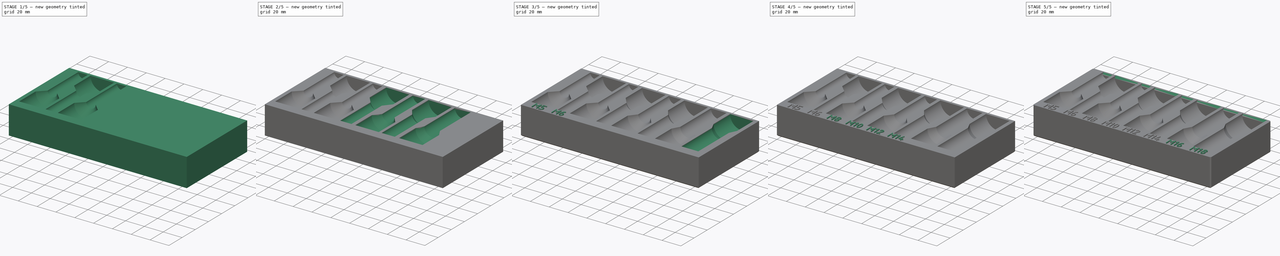
[diagram: build sequence overview — one tinted view per stage of 5, left to right]
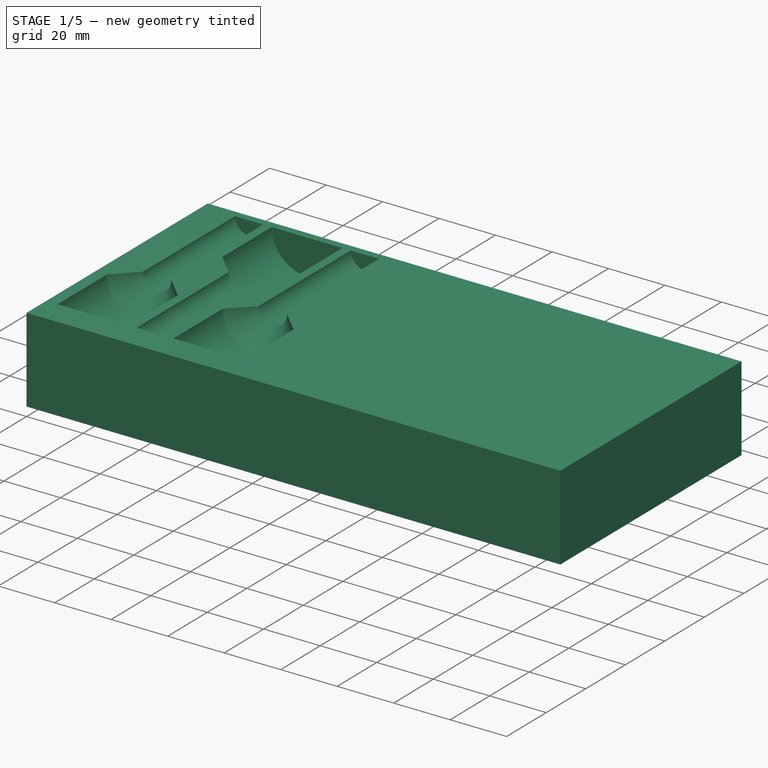
[diagram: stage 1 of 5 — iso view after this stage's code; geometry added in this stage tinted green]
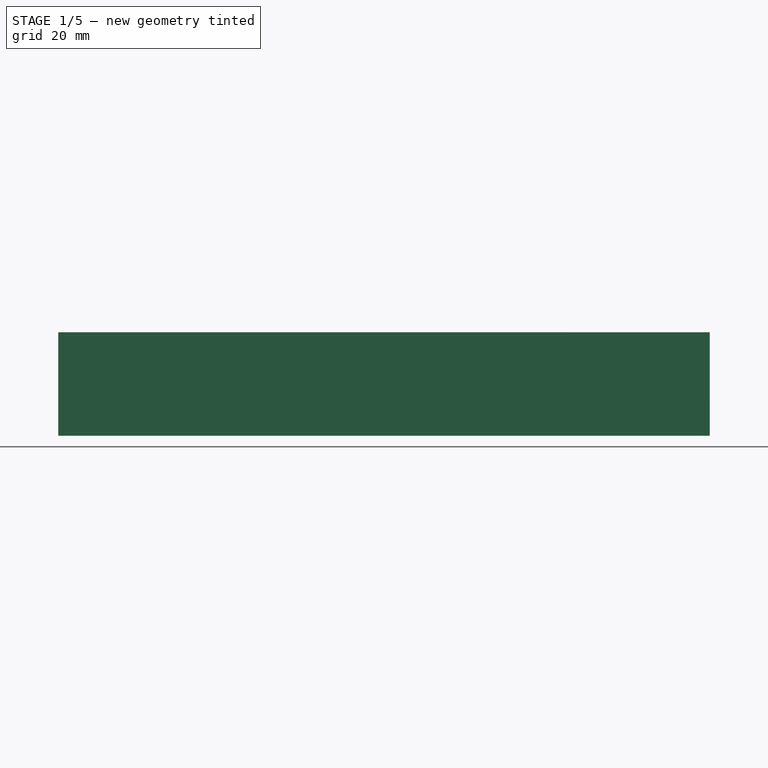
[diagram: stage 1 of 5 — front view after this stage's code; geometry added in this stage tinted green]
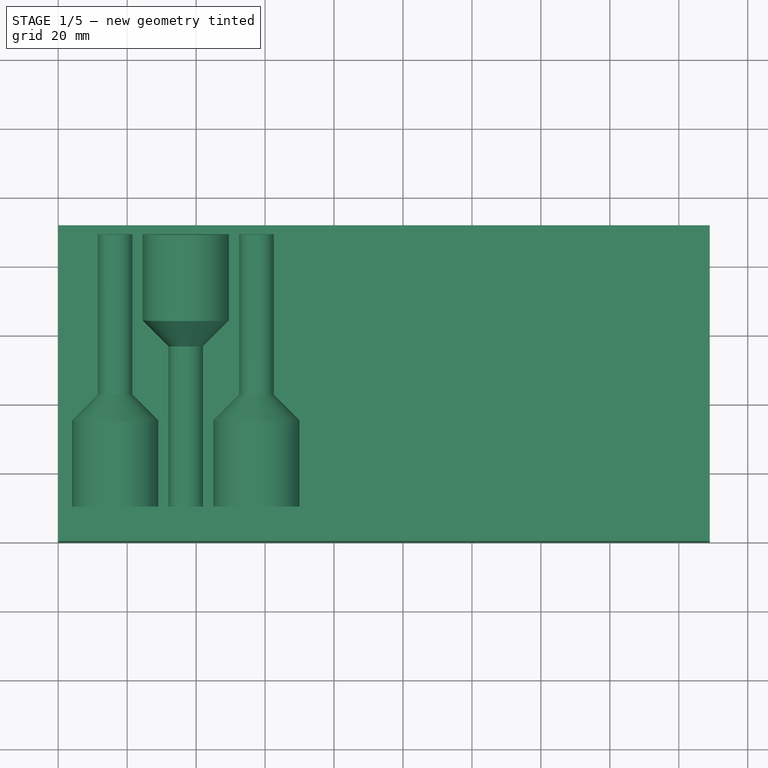
[diagram: stage 1 of 5 — top view after this stage's code; geometry added in this stage tinted green]
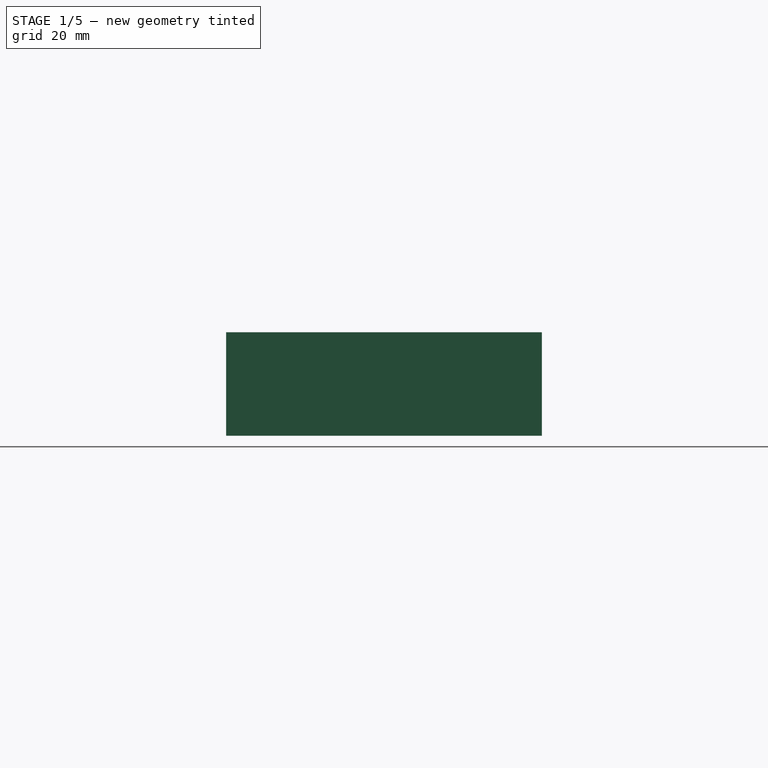
[diagram: stage 1 of 5 — right view after this stage's code; geometry added in this stage tinted green]
FCSTD DOCUMENT  (FreeCAD 1.1R44227 +568 (Git))
Label: Pajala_XZN_pwr_socket
License: All rights reserved
LicenseURL: https://en.wikipedia.org/wiki/All_rights_reserved
objects: Sketcher::SketchObject×9, PartDesign::Pad×9, PartDesign::Groove×8, Part::Part2DObjectPython×8, PartDesign::Chamfer×3, App::Point×1, PartDesign::Body×1
note: 87 computed .brp shape members not serialized (recipe doc carries the construction recipe); baked Part::Feature solids carry a one-line shape summary decoded from their .brp

FEATURE [App::Point] Origin001
  Role = Origin
FEATURE [Sketcher::SketchObject] Sketch
  ArcFitTolerance = 1e-06
  AttachmentSupport = -> [Origin]
  ExternalTypes = [0]
  FullyConstrained = true
  MakeInternals = false
  MapMode = 5
  _ExternalGeoVersion = 1
  sketch-geometry (4):
    g0: LineSegment StartX=0 StartY=0 StartZ=0 EndX=188.99 EndY=0 EndZ=0
    g1: LineSegment StartX=188.99 StartY=0 StartZ=0 EndX=188.99 EndY=91.6 EndZ=0
    g2: LineSegment StartX=188.99 StartY=91.6 StartZ=0 EndX=0 EndY=91.6 EndZ=0
    g3: LineSegment StartX=0 StartY=91.6 StartZ=0 EndX=0 EndY=0 EndZ=0
  constraints (11):
    c: Coincident(g0,g1)
    c: Coincident(g1,g2)
    c: Coincident(g2,g3)
    c: Coincident(g3,g0)
    c: Horizontal(g0)
    c: Horizontal(g2)
    c: Vertical(g1)
    c: Vertical(g3)
    c: Coincident(g0,g-1)
    c: DistanceX(g0,g0) = 188.99
    c: DistanceY(g1,g1) = 91.6
FEATURE [PartDesign::Pad] Pad
  Direction = (0,0,1)
  Length = 30
  Length2 = 10
  Profile = -> Sketch
  ReferenceAxis = -> Sketch [N_Axis]
  Refine = true
  SideType = 0
  Suppressed = false
  Type = 0
  Type2 = 0
FEATURE [Sketcher::SketchObject] Sketch001  label="M5"
  ArcFitTolerance = 1e-06
  AttachmentSupport = -> [Pad]
  ExternalTypes = [0]
  FullyConstrained = true
  MakeInternals = false
  MapMode = 5
  Placement = pos=(0,0,30) rot=(0,0,1;0rad)
  _ExternalGeoVersion = 1
  sketch-geometry (6):
    g0: LineSegment StartX=4 StartY=35 StartZ=0 EndX=4 EndY=10 EndZ=0
    g1: LineSegment StartX=11.5 StartY=42.5 StartZ=0 EndX=11.5 EndY=89 EndZ=0
    g2: LineSegment StartX=4 StartY=35 StartZ=0 EndX=11.5 EndY=42.5 EndZ=0
    g3: LineSegment StartX=4 StartY=10 StartZ=0 EndX=16.5 EndY=10 EndZ=0
    g4: LineSegment StartX=16.5 StartY=10 StartZ=0 EndX=16.5 EndY=89 EndZ=0
    g5: LineSegment StartX=16.5 StartY=89 StartZ=0 EndX=11.5 EndY=89 EndZ=0
  constraints (18):
    c: Vertical(g0)
    c: Vertical(g1)
    c: Coincident(g2,g0)
    c: Coincident(g2,g1)
    c: DistanceX(g-1,g0) = 4
    c: DistanceY(g-1,g0) = 10
    c: DistanceY(g0,g1) = 79
    c: Coincident(g3,g0)
    c: Horizontal(g3)
    c: Coincident(g4,g3)
    c: Vertical(g4)
    c: Coincident(g5,g4)
    c: Coincident(g5,g1)
    c: Horizontal(g5)
    c: DistanceX(g3,g3) = 12.5
    c: DistanceX(g5,g5) = 5
    c: DistanceY(g0,g0) = 25
    c: DistanceY(g0,g1) = 7.5
FEATURE [PartDesign::Groove] Groove
  Angle = 360
  Angle2 = 0
  Axis = (0,1,0)
  Base = (16.5,10,30)
  BaseFeature = -> Pad
  Profile = -> Sketch001
  ReferenceAxis = -> Sketch001 [Edge4]
  Refine = true
  Suppressed = false
  Type = 0
FEATURE [Sketcher::SketchObject] Sketch002  label="M6"
  ArcFitTolerance = 1e-06
  AttachmentSupport = -> [Groove]
  ExternalTypes = [0]
  FullyConstrained = true
  MakeInternals = false
  MapMode = 5
  Placement = pos=(0,0,30) rot=(0,0,1;0rad)
  _ExternalGeoVersion = 1
  sketch-geometry (6):
    g0: LineSegment StartX=24.5 StartY=89 StartZ=0 EndX=37 EndY=89 EndZ=0
    g1: LineSegment StartX=24.5 StartY=89 StartZ=0 EndX=24.5 EndY=64 EndZ=0
    g2: LineSegment StartX=24.5 StartY=64 StartZ=0 EndX=32 EndY=56.5 EndZ=0
    g3: LineSegment StartX=32 StartY=56.5 StartZ=0 EndX=32 EndY=10 EndZ=0
    g4: LineSegment StartX=32 StartY=10 StartZ=0 EndX=37 EndY=10 EndZ=0
    g5: LineSegment StartX=37 StartY=10 StartZ=0 EndX=37 EndY=89 EndZ=0
  constraints (18):
    c: Horizontal(g0)
    c: Coincident(g1,g0)
    c: Vertical(g1)
    c: Coincident(g2,g1)
    c: Coincident(g3,g2)
    c: Vertical(g3)
    c: Coincident(g4,g3)
    c: Horizontal(g4)
    c: Coincident(g5,g4)
    c: Coincident(g5,g0)
    c: Vertical(g5)
    c: DistanceY(g1,g1) = 25
    c: DistanceX(g0,g0) = 12.5
    c: DistanceX(g4,g4) = 5
    c: DistanceY(g2,g1) = 7.5
    c: DistanceY(g5,g5) = 79
    c: DistanceY(g-1,g3) = 10
    c: DistanceX(g-1,g3) = 32
FEATURE [PartDesign::Groove] Groove001
  Angle = 360
  Angle2 = 0
  Axis = (0,1,0)
  Base = (37,10,30)
  BaseFeature = -> Groove
  Profile = -> Sketch002
  ReferenceAxis = -> Sketch002 [Edge2]
  Refine = true
  Suppressed = false
  Type = 0
FEATURE [Sketcher::SketchObject] Sketch003
  ArcFitTolerance = 1e-06
  AttachmentSupport = -> [Groove001]
  ExternalTypes = [0]
  FullyConstrained = true
  MakeInternals = false
  MapMode = 5
  Placement = pos=(0,0,30) rot=(0,0,1;0rad)
  _ExternalGeoVersion = 1
  sketch-geometry (6):
    g0: LineSegment StartX=45 StartY=10 StartZ=0 EndX=45 EndY=35 EndZ=0
    g1: LineSegment StartX=45 StartY=35 StartZ=0 EndX=52.5 EndY=42.5 EndZ=0
    g2: LineSegment StartX=52.5 StartY=42.5 StartZ=0 EndX=52.5 EndY=89 EndZ=0
    g3: LineSegment StartX=52.5 StartY=89 StartZ=0 EndX=57.5 EndY=89 EndZ=0
    g4: LineSegment StartX=57.5 StartY=89 StartZ=0 EndX=57.5 EndY=10 EndZ=0
    g5: LineSegment StartX=57.5 StartY=10 StartZ=0 EndX=45 EndY=10 EndZ=0
  constraints (18):
    c: Vertical(g0)
    c: Coincident(g1,g0)
    c: Coincident(g2,g1)
    c: Vertical(g2)
    c: Coincident(g3,g2)
    c: Horizontal(g3)
    c: Coincident(g4,g3)
    c: Vertical(g4)
    c: Coincident(g5,g4)
    c: Coincident(g5,g0)
    c: Horizontal(g5)
    c: DistanceY(g0,g0) = 25
    c: DistanceY(g-1,g0) = 10
    c: DistanceX(g5,g5) = 12.5
    c: DistanceY(g0,g1) = 7.5
    c: DistanceX(g3,g3) = 5
    c: DistanceY(g4,g4) = 79
    c: DistanceX(g-1,g0) = 45
FEATURE [PartDesign::Groove] Groove002
  Angle = 360
  Angle2 = 0
  Axis = (0,-1,0)
  Base = (57.5,89,30)
  BaseFeature = -> Groove001
  Profile = -> Sketch003
  ReferenceAxis = -> Sketch003 [Edge5]
  Refine = true
  Suppressed = false
  Type = 0
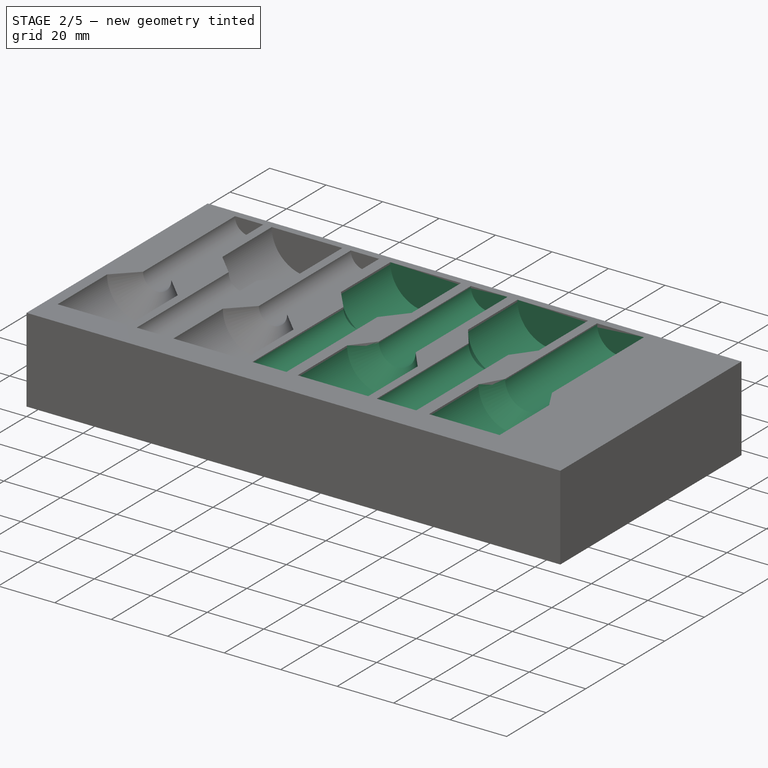
[diagram: stage 2 of 5 — iso view after this stage's code; geometry added in this stage tinted green]
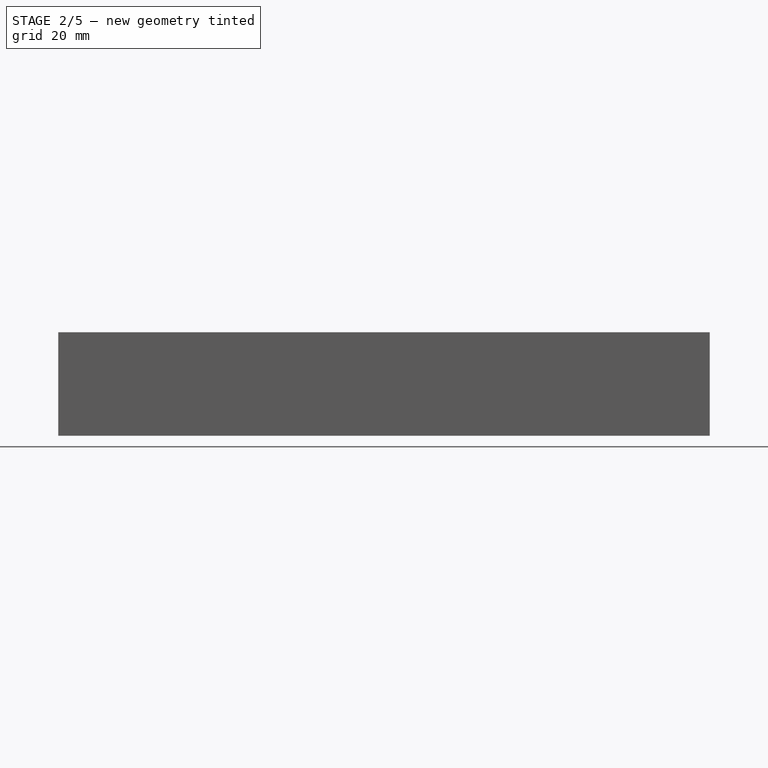
[diagram: stage 2 of 5 — front view after this stage's code; geometry added in this stage tinted green]
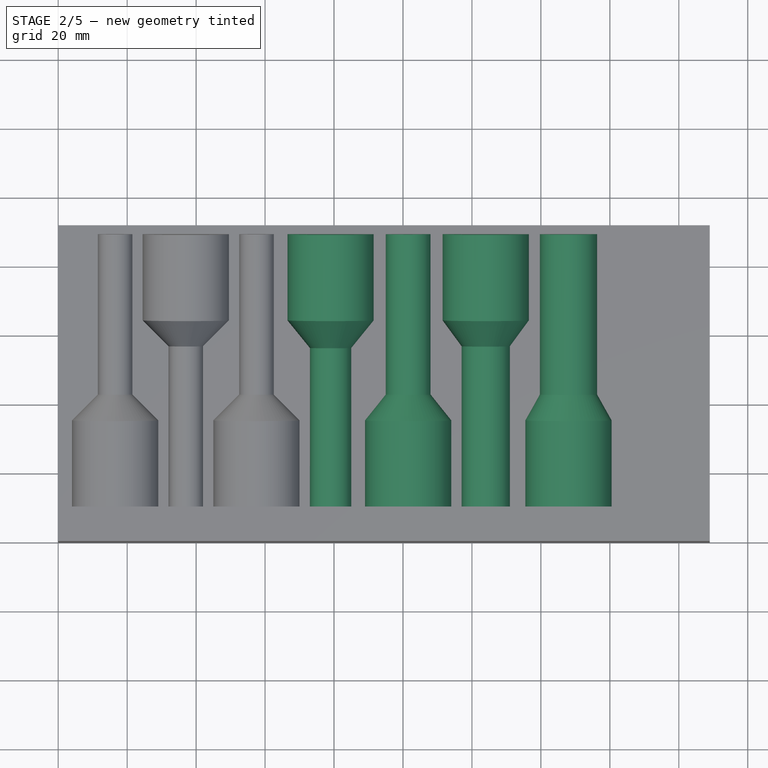
[diagram: stage 2 of 5 — top view after this stage's code; geometry added in this stage tinted green]
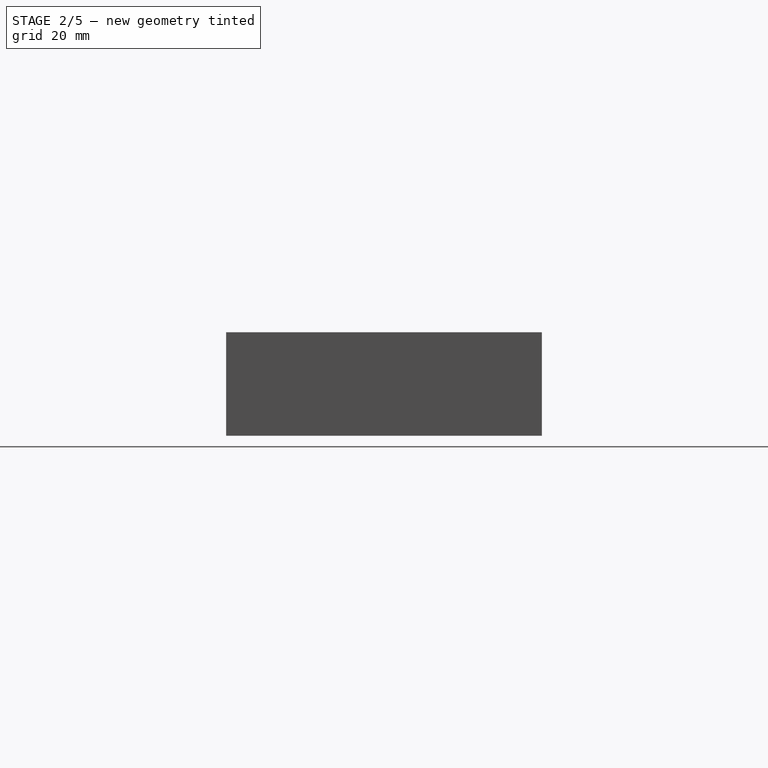
[diagram: stage 2 of 5 — right view after this stage's code; geometry added in this stage tinted green]
FEATURE [Sketcher::SketchObject] Sketch004  label="M10"
  ArcFitTolerance = 1e-06
  AttachmentSupport = -> [Groove002]
  ExternalTypes = [0]
  FullyConstrained = true
  MakeInternals = false
  MapMode = 5
  Placement = pos=(0,0,30) rot=(0,0,1;0rad)
  _ExternalGeoVersion = 1
  sketch-geometry (6):
    g0: LineSegment StartX=66.5 StartY=89 StartZ=0 EndX=66.5 EndY=64 EndZ=0
    g1: LineSegment StartX=66.5 StartY=64 StartZ=0 EndX=73 EndY=56 EndZ=0
    g2: LineSegment StartX=73 StartY=56 StartZ=0 EndX=73 EndY=10 EndZ=0
    g3: LineSegment StartX=73 StartY=10 StartZ=0 EndX=79 EndY=10 EndZ=0
    g4: LineSegment StartX=79 StartY=10 StartZ=0 EndX=79 EndY=89 EndZ=0
    g5: LineSegment StartX=79 StartY=89 StartZ=0 EndX=66.5 EndY=89 EndZ=0
  constraints (18):
    c: Vertical(g0)
    c: Coincident(g1,g0)
    c: Coincident(g2,g1)
    c: Vertical(g2)
    c: Coincident(g3,g2)
    c: Horizontal(g3)
    c: Coincident(g4,g3)
    c: Vertical(g4)
    c: Coincident(g5,g4)
    c: Coincident(g5,g0)
    c: Horizontal(g5)
    c: DistanceY(g-1,g2) = 10
    c: DistanceY(g4,g4) = 79
    c: DistanceX(g5,g5) = 12.5
    c: DistanceY(g0,g0) = 25
    c: DistanceY(g1,g0) = 8
    c: DistanceX(g3,g3) = 6
    c: DistanceX(g-1,g2) = 73
FEATURE [PartDesign::Groove] Groove003
  Angle = 360
  Angle2 = 0
  Axis = (0,1,0)
  Base = (79,10,30)
  BaseFeature = -> Groove002
  Profile = -> Sketch004
  ReferenceAxis = -> Sketch004 [Edge5]
  Refine = true
  Suppressed = false
  Type = 0
FEATURE [Sketcher::SketchObject] Sketch005  label="M12"
  ArcFitTolerance = 1e-06
  AttachmentSupport = -> [Groove003]
  ExternalTypes = [0]
  FullyConstrained = true
  MakeInternals = false
  MapMode = 5
  Placement = pos=(0,0,30) rot=(0,0,1;0rad)
  _ExternalGeoVersion = 1
  sketch-geometry (6):
    g0: LineSegment StartX=89 StartY=10 StartZ=0 EndX=89 EndY=35 EndZ=0
    g1: LineSegment StartX=89 StartY=35 StartZ=0 EndX=95 EndY=42.5 EndZ=0
    g2: LineSegment StartX=95 StartY=42.5 StartZ=0 EndX=95 EndY=89 EndZ=0
    g3: LineSegment StartX=95 StartY=89 StartZ=0 EndX=101.5 EndY=89 EndZ=0
    g4: LineSegment StartX=101.5 StartY=89 StartZ=0 EndX=101.5 EndY=10 EndZ=0
    g5: LineSegment StartX=101.5 StartY=10 StartZ=0 EndX=89 EndY=10 EndZ=0
  constraints (18):
    c: Vertical(g0)
    c: Coincident(g1,g0)
    c: Coincident(g2,g1)
    c: Vertical(g2)
    c: Coincident(g3,g2)
    c: Horizontal(g3)
    c: Coincident(g4,g3)
    c: Vertical(g4)
    c: Coincident(g5,g4)
    c: Coincident(g5,g0)
    c: Horizontal(g5)
    c: DistanceX(g5,g5) = 12.5
    c: DistanceY(g-1,g0) = 10
    c: DistanceY(g0,g0) = 25
    c: DistanceY(g4,g4) = 79
    c: DistanceX(g3,g3) = 6.5
    c: DistanceY(g0,g1) = 7.5
    c: DistanceX(g-1,g0) = 89
FEATURE [PartDesign::Groove] Groove004
  Angle = 360
  Angle2 = 0
  Axis = (0,-1,0)
  Base = (101.5,89,30)
  BaseFeature = -> Groove003
  Profile = -> Sketch005
  ReferenceAxis = -> Sketch005 [Edge5]
  Refine = true
  Suppressed = false
  Type = 0
FEATURE [Sketcher::SketchObject] Sketch006  label="M14"
  ArcFitTolerance = 1e-06
  AttachmentSupport = -> [Groove004]
  ExternalTypes = [0]
  FullyConstrained = true
  MakeInternals = false
  MapMode = 5
  Placement = pos=(0,0,30) rot=(0,0,1;0rad)
  _ExternalGeoVersion = 1
  sketch-geometry (6):
    g0: LineSegment StartX=111.5 StartY=89 StartZ=0 EndX=111.5 EndY=64 EndZ=0
    g1: LineSegment StartX=111.5 StartY=64 StartZ=0 EndX=117 EndY=56.5 EndZ=0
    g2: LineSegment StartX=117 StartY=56.5 StartZ=0 EndX=117 EndY=10 EndZ=0
    g3: LineSegment StartX=117 StartY=10 StartZ=0 EndX=124 EndY=10 EndZ=0
    g4: LineSegment StartX=124 StartY=10 StartZ=0 EndX=124 EndY=89 EndZ=0
    g5: LineSegment StartX=124 StartY=89 StartZ=0 EndX=111.5 EndY=89 EndZ=0
  constraints (18):
    c: Vertical(g0)
    c: Coincident(g1,g0)
    c: Coincident(g2,g1)
    c: Vertical(g2)
    c: Coincident(g3,g2)
    c: Horizontal(g3)
    c: Coincident(g4,g3)
    c: Vertical(g4)
    c: Coincident(g5,g4)
    c: Coincident(g5,g0)
    c: Horizontal(g5)
    c: DistanceX(g5,g5) = 12.5
    c: DistanceY(g4,g4) = 79
    c: DistanceY(g0,g0) = 25
    c: DistanceY(g1,g0) = 7.5
    c: DistanceX(g3,g3) = 7
    c: DistanceY(g-1,g2) = 10
    c: DistanceX(g-1,g2) = 117
FEATURE [PartDesign::Groove] Groove005
  Angle = 360
  Angle2 = 0
  Axis = (0,1,0)
  Base = (124,10,30)
  BaseFeature = -> Groove004
  Profile = -> Sketch006
  ReferenceAxis = -> Sketch006 [Edge5]
  Refine = true
  Suppressed = false
  Type = 0
FEATURE [Sketcher::SketchObject] Sketch007
  ArcFitTolerance = 1e-06
  AttachmentSupport = -> [Groove005]
  ExternalTypes = [0]
  FullyConstrained = true
  MakeInternals = false
  MapMode = 5
  Placement = pos=(0,0,30) rot=(0,0,1;0rad)
  _ExternalGeoVersion = 1
  sketch-geometry (6):
    g0: LineSegment StartX=135.5 StartY=10 StartZ=0 EndX=135.5 EndY=35 EndZ=0
    g1: LineSegment StartX=135.5 StartY=35 StartZ=0 EndX=139.7 EndY=42.5 EndZ=0
    g2: LineSegment StartX=139.7 StartY=42.5 StartZ=0 EndX=139.7 EndY=89 EndZ=0
    g3: LineSegment StartX=139.7 StartY=89 StartZ=0 EndX=148 EndY=89 EndZ=0
    g4: LineSegment StartX=148 StartY=89 StartZ=0 EndX=148 EndY=10 EndZ=0
    g5: LineSegment StartX=148 StartY=10 StartZ=0 EndX=135.5 EndY=10 EndZ=0
  constraints (18):
    c: Vertical(g0)
    c: Coincident(g0,g1)
    c: Coincident(g1,g2)
    c: Vertical(g2)
    c: Coincident(g2,g3)
    c: Horizontal(g3)
    c: Coincident(g3,g4)
    c: Vertical(g4)
    c: Coincident(g4,g5)
    c: Coincident(g5,g0)
    c: Horizontal(g5)
    c: DistanceX(g5,g5) = 12.5
    c: DistanceY(g0,g0) = 25
    c: DistanceY(g0,g1) = 7.5
    c: DistanceY(g4,g4) = 79
    c: DistanceY(g-1,g4) = 10
    c: DistanceX(g3,g3) = 8.3
    c: DistanceX(g-1,g0) = 135.5
FEATURE [PartDesign::Groove] Groove006
  Angle = 360
  Angle2 = 0
  Axis = (0,-1,0)
  Base = (148,89,30)
  BaseFeature = -> Groove005
  Profile = -> Sketch007
  ReferenceAxis = -> Sketch007 [Edge5]
  Refine = true
  Suppressed = false
  Type = 0
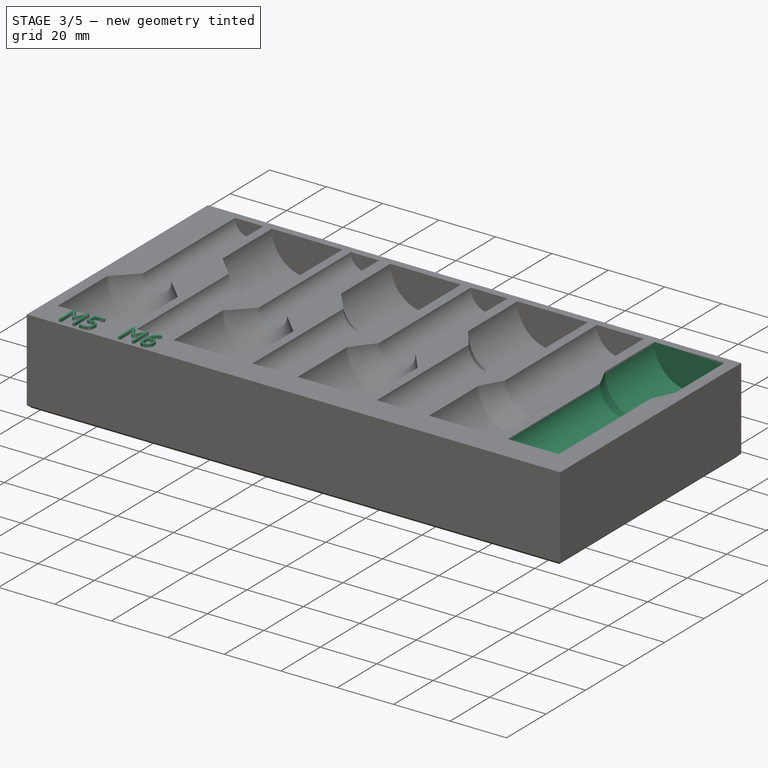
[diagram: stage 3 of 5 — iso view after this stage's code; geometry added in this stage tinted green]
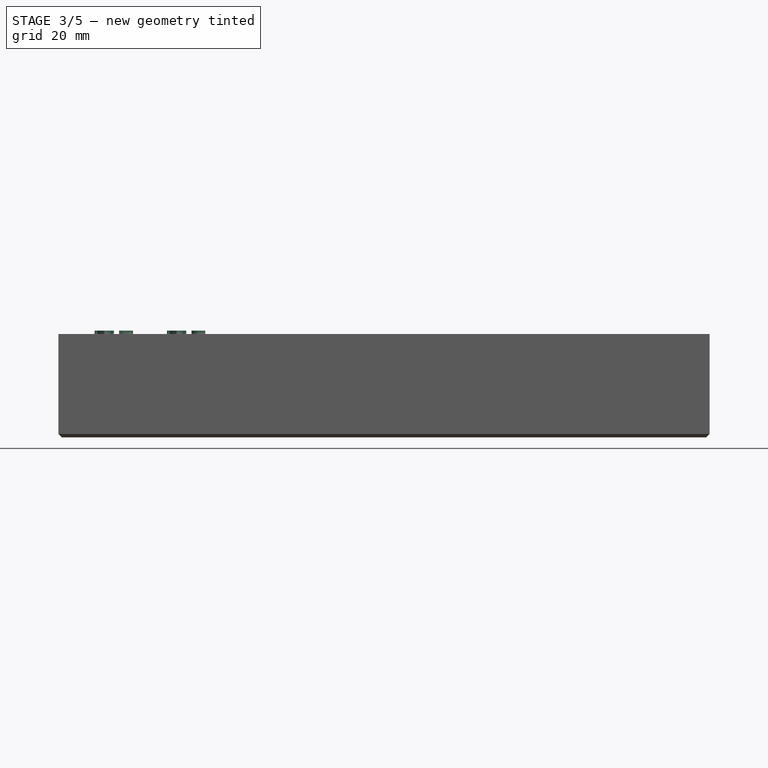
[diagram: stage 3 of 5 — front view after this stage's code; geometry added in this stage tinted green]
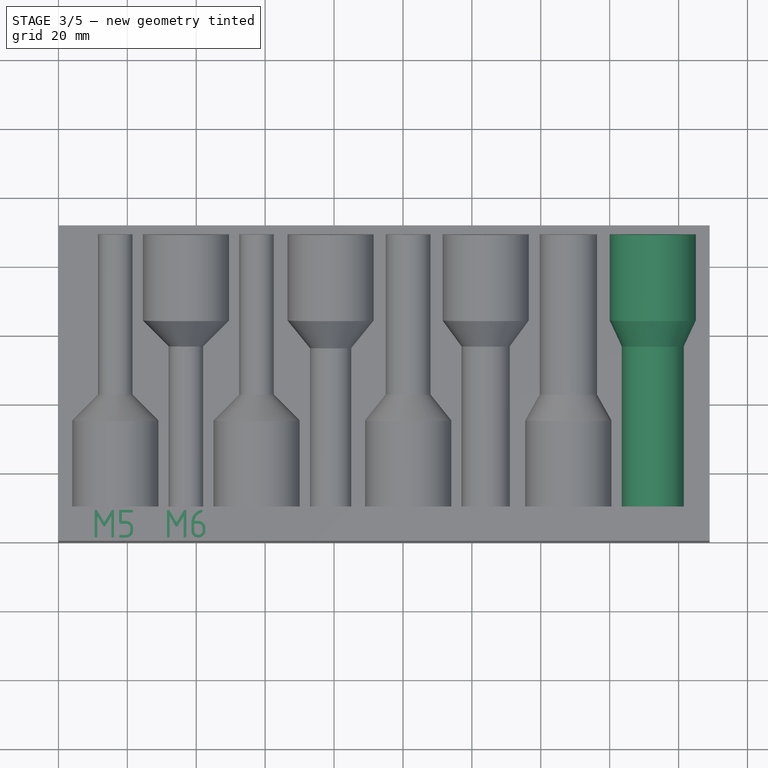
[diagram: stage 3 of 5 — top view after this stage's code; geometry added in this stage tinted green]
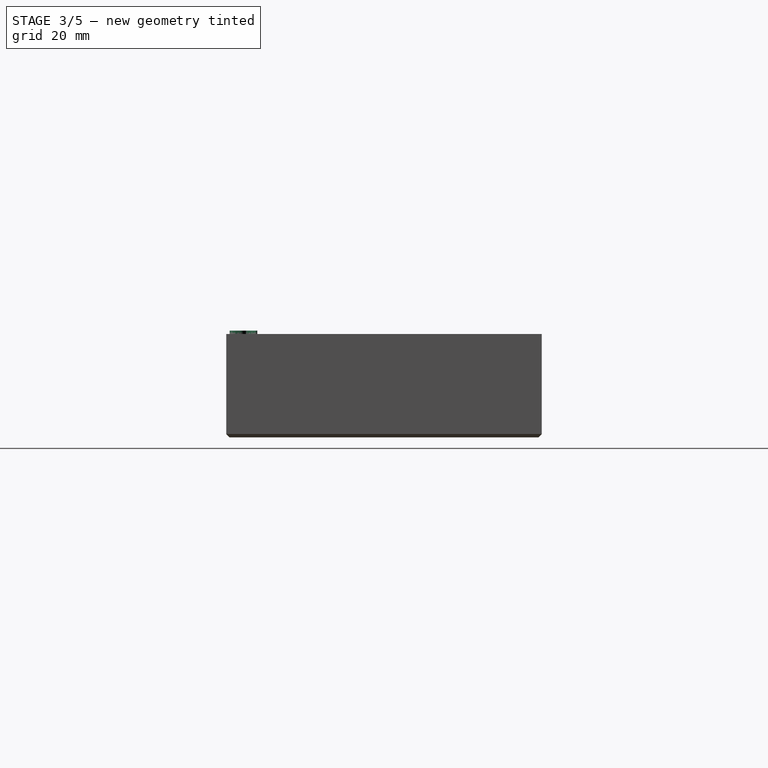
[diagram: stage 3 of 5 — right view after this stage's code; geometry added in this stage tinted green]
FEATURE [Sketcher::SketchObject] Sketch008
  ArcFitTolerance = 1e-06
  AttachmentSupport = -> [Groove006]
  ExternalTypes = [0]
  FullyConstrained = true
  MakeInternals = false
  MapMode = 5
  Placement = pos=(0,0,30) rot=(0,0,1;0rad)
  _ExternalGeoVersion = 1
  sketch-geometry (6):
    g0: LineSegment StartX=160 StartY=89 StartZ=0 EndX=160 EndY=64 EndZ=0
    g1: LineSegment StartX=160 StartY=64 StartZ=0 EndX=163.5 EndY=56.5 EndZ=0
    g2: LineSegment StartX=163.5 StartY=56.5 StartZ=0 EndX=163.5 EndY=10 EndZ=0
    g3: LineSegment StartX=163.5 StartY=10 StartZ=0 EndX=172.5 EndY=10 EndZ=0
    g4: LineSegment StartX=172.5 StartY=10 StartZ=0 EndX=172.5 EndY=89 EndZ=0
    g5: LineSegment StartX=172.5 StartY=89 StartZ=0 EndX=160 EndY=89 EndZ=0
  constraints (18):
    c: Vertical(g0)
    c: Coincident(g0,g1)
    c: Coincident(g1,g2)
    c: Vertical(g2)
    c: Coincident(g2,g3)
    c: Horizontal(g3)
    c: Coincident(g3,g4)
    c: Vertical(g4)
    c: Coincident(g4,g5)
    c: Horizontal(g5)
    c: Coincident(g5,g0)
    c: DistanceX(g5,g5) = 12.5
    c: DistanceY(g4,g4) = 79
    c: DistanceY(g0,g0) = 25
    c: DistanceY(g1,g1) = 7.5
    c: DistanceY(g-1,g3) = 10
    c: DistanceX(g3,g3) = 9
    c: DistanceX(g-1,g2) = 163.5
FEATURE [PartDesign::Groove] Groove007
  Angle = 360
  Angle2 = 0
  Axis = (0,1,0)
  Base = (172.5,10,30)
  BaseFeature = -> Groove006
  Profile = -> Sketch008
  ReferenceAxis = -> Sketch008 [Edge5]
  Refine = true
  Suppressed = false
  Type = 0
FEATURE [PartDesign::Chamfer] Chamfer
  Angle = 45
  Base = -> Groove007 [Face4]
  BaseFeature = -> Groove007
  ChamferType = 0
  FlipDirection = false
  Refine = true
  Size = 1
  Size2 = 1
  SupportTransform = false
  Suppressed = false
  UseAllEdges = false
FEATURE [Part::Part2DObjectPython] ShapeString  # Draft 2D object (typed FeaturePython)
  AttachmentOffset = pos=(10.5,1,0) rot=(0,0,1;0rad)
  AttachmentSupport = -> [Chamfer]
  FontFile = <path>
  Fuse = false
  Justification = 6
  JustificationReference = 0
  KeepLeftMargin = false
  MakeFace = true
  MapMode = 5
  ObliqueAngle = 0
  Placement = pos=(10.5,1,30) rot=(0,0,1;0rad)
  ScaleToSize = true
  Size = 8
  String = M5
  Tracking = 0
FEATURE [PartDesign::Pad] Pad001
  BaseFeature = -> Chamfer
  Direction = (0,0,1)
  Length = 1
  Length2 = 10
  Profile = -> ShapeString
  ReferenceAxis = -> ShapeString [N_Axis]
  Refine = true
  SideType = 0
  Suppressed = false
  Type = 0
  Type2 = 0
FEATURE [Part::Part2DObjectPython] ShapeString001  # Draft 2D object (typed FeaturePython)
  AttachmentOffset = pos=(31.5,1,0) rot=(0,0,1;0rad)
  AttachmentSupport = -> [Pad001]
  FontFile = <path>
  Fuse = false
  Justification = 6
  JustificationReference = 0
  KeepLeftMargin = false
  MakeFace = true
  MapMode = 5
  ObliqueAngle = 0
  Placement = pos=(31.5,1,30) rot=(0,0,1;0rad)
  ScaleToSize = true
  Size = 8
  String = M6
  Tracking = 0
FEATURE [PartDesign::Pad] Pad002
  BaseFeature = -> Pad001
  Direction = (0,0,1)
  Length = 1
  Length2 = 10
  Profile = -> ShapeString001
  ReferenceAxis = -> ShapeString001 [N_Axis]
  Refine = true
  SideType = 0
  Suppressed = false
  Type = 0
  Type2 = 0
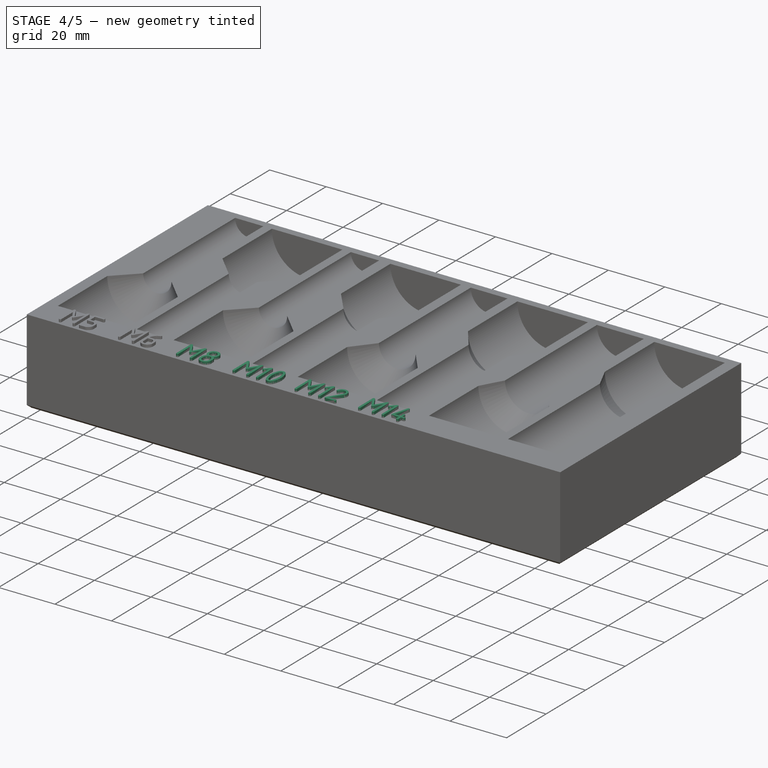
[diagram: stage 4 of 5 — iso view after this stage's code; geometry added in this stage tinted green]
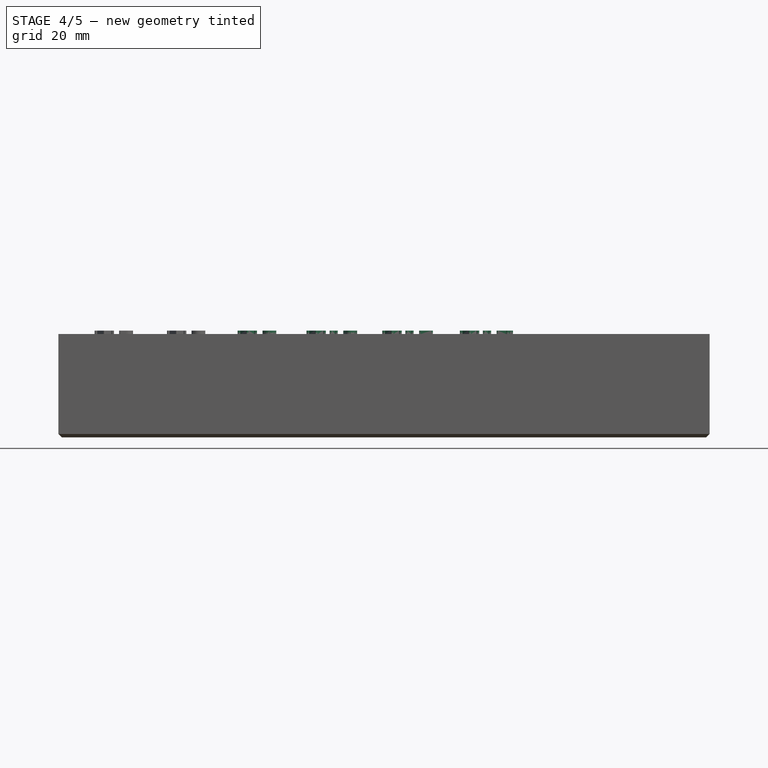
[diagram: stage 4 of 5 — front view after this stage's code; geometry added in this stage tinted green]
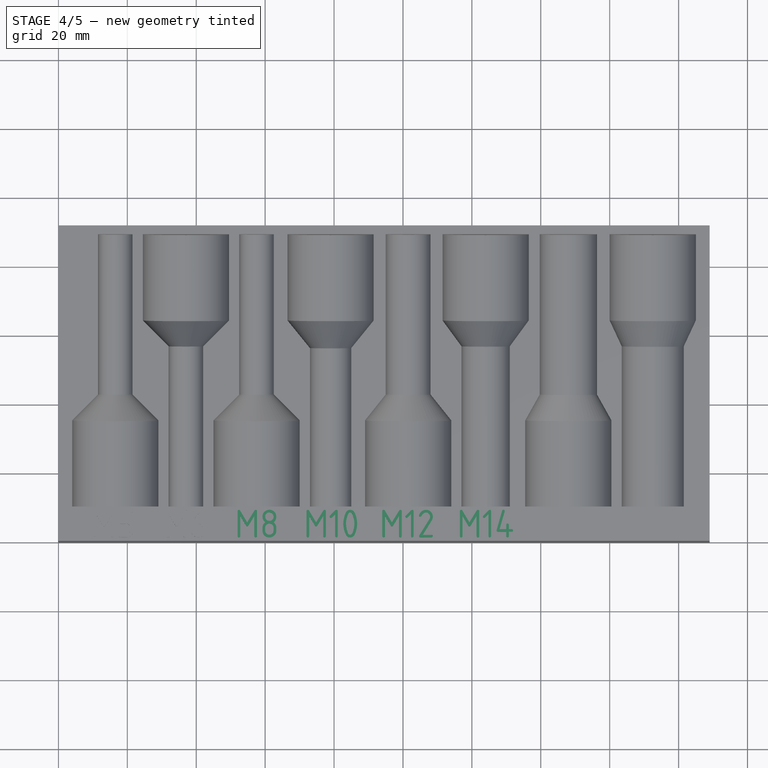
[diagram: stage 4 of 5 — top view after this stage's code; geometry added in this stage tinted green]
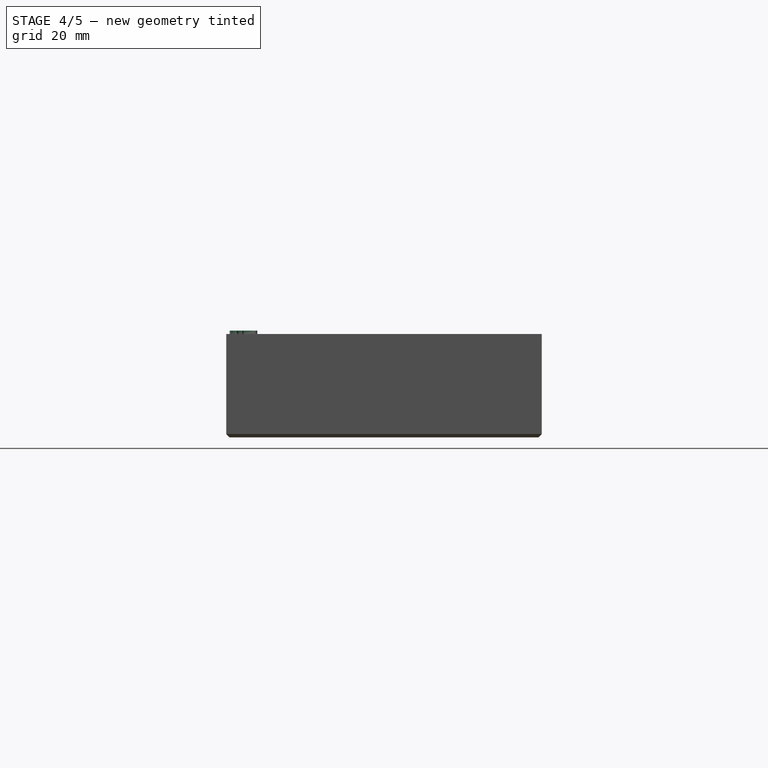
[diagram: stage 4 of 5 — right view after this stage's code; geometry added in this stage tinted green]
FEATURE [Part::Part2DObjectPython] ShapeString002  # Draft 2D object (typed FeaturePython)
  AttachmentOffset = pos=(52,1,0) rot=(0,0,1;0rad)
  AttachmentSupport = -> [Pad002]
  FontFile = <path>
  Fuse = false
  Justification = 6
  JustificationReference = 0
  KeepLeftMargin = false
  MakeFace = true
  MapMode = 5
  ObliqueAngle = 0
  Placement = pos=(52,1,30) rot=(0,0,1;0rad)
  ScaleToSize = true
  Size = 8
  String = M8
  Tracking = 0
FEATURE [PartDesign::Pad] Pad003
  BaseFeature = -> Pad002
  Direction = (0,0,1)
  Length = 1
  Length2 = 10
  Profile = -> ShapeString002
  ReferenceAxis = -> ShapeString002 [N_Axis]
  Refine = true
  SideType = 0
  Suppressed = false
  Type = 0
  Type2 = 0
FEATURE [Part::Part2DObjectPython] ShapeString003  # Draft 2D object (typed FeaturePython)
  AttachmentOffset = pos=(72,1,0) rot=(0,0,1;0rad)
  AttachmentSupport = -> [Pad003]
  FontFile = <path>
  Fuse = false
  Justification = 6
  JustificationReference = 0
  KeepLeftMargin = false
  MakeFace = true
  MapMode = 5
  ObliqueAngle = 0
  Placement = pos=(72,1,30) rot=(0,0,1;0rad)
  ScaleToSize = true
  Size = 8
  String = M10
  Tracking = 0
FEATURE [PartDesign::Pad] Pad004
  BaseFeature = -> Pad003
  Direction = (0,0,1)
  Length = 1
  Length2 = 10
  Profile = -> ShapeString003
  ReferenceAxis = -> ShapeString003 [N_Axis]
  Refine = true
  SideType = 0
  Suppressed = false
  Type = 0
  Type2 = 0
FEATURE [Part::Part2DObjectPython] ShapeString004  # Draft 2D object (typed FeaturePython)
  AttachmentOffset = pos=(94,1,0) rot=(0,0,1;0rad)
  AttachmentSupport = -> [Pad004]
  FontFile = <path>
  Fuse = false
  Justification = 6
  JustificationReference = 0
  KeepLeftMargin = false
  MakeFace = true
  MapMode = 5
  ObliqueAngle = 0
  Placement = pos=(94,1,30) rot=(0,0,1;0rad)
  ScaleToSize = true
  Size = 8
  String = M12
  Tracking = 0
FEATURE [PartDesign::Pad] Pad005
  BaseFeature = -> Pad004
  Direction = (0,0,1)
  Length = 1
  Length2 = 10
  Profile = -> ShapeString004
  ReferenceAxis = -> ShapeString004 [N_Axis]
  Refine = true
  SideType = 0
  Suppressed = false
  Type = 0
  Type2 = 0
FEATURE [Part::Part2DObjectPython] ShapeString005  # Draft 2D object (typed FeaturePython)
  AttachmentOffset = pos=(116.5,1,0) rot=(0,0,1;0rad)
  AttachmentSupport = -> [Pad005]
  FontFile = <path>
  Fuse = false
  Justification = 6
  JustificationReference = 0
  KeepLeftMargin = false
  MakeFace = true
  MapMode = 5
  ObliqueAngle = 0
  Placement = pos=(116.5,1,30) rot=(0,0,1;0rad)
  ScaleToSize = true
  Size = 8
  String = M14
  Tracking = 0
FEATURE [PartDesign::Pad] Pad006
  BaseFeature = -> Pad005
  Direction = (0,0,1)
  Length = 1
  Length2 = 10
  Profile = -> ShapeString005
  ReferenceAxis = -> ShapeString005 [N_Axis]
  Refine = true
  SideType = 0
  Suppressed = false
  Type = 0
  Type2 = 0
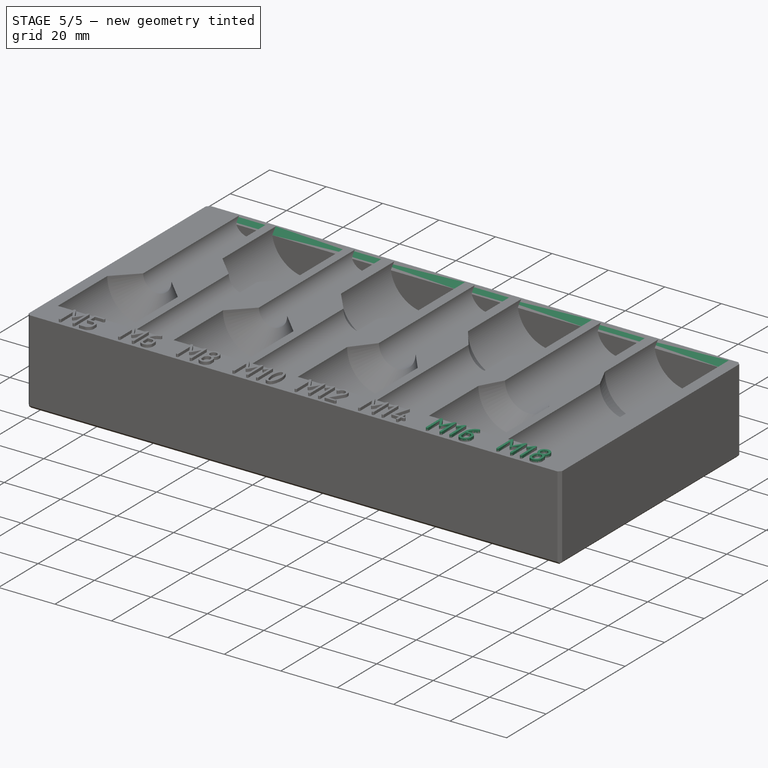
[diagram: stage 5 of 5 — iso view after this stage's code; geometry added in this stage tinted green]
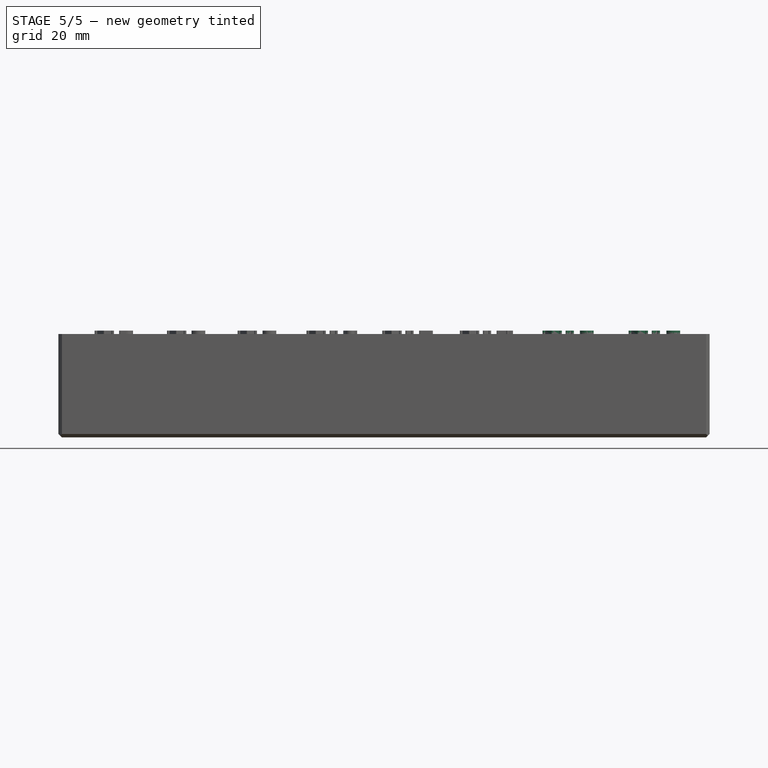
[diagram: stage 5 of 5 — front view after this stage's code; geometry added in this stage tinted green]
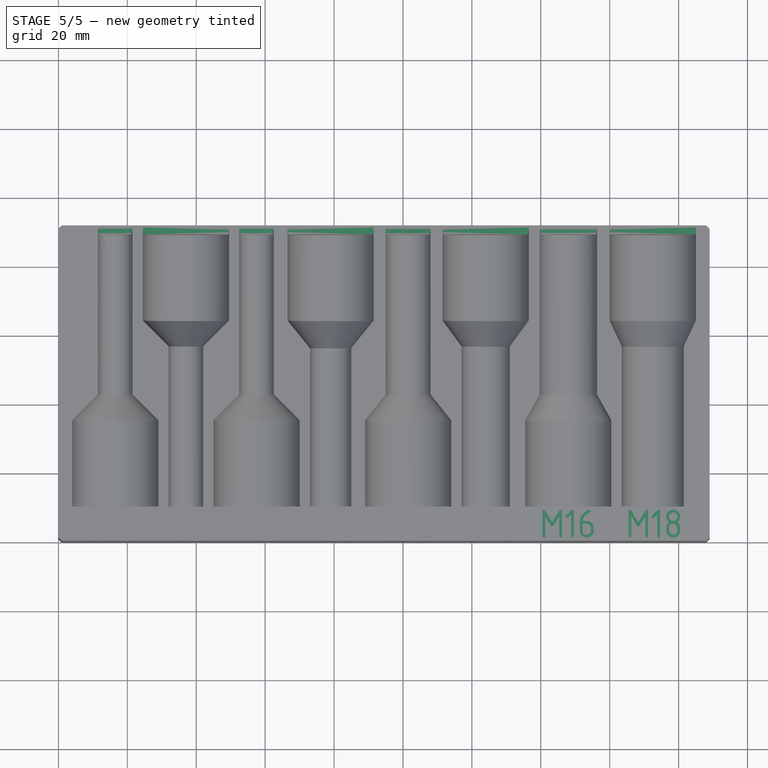
[diagram: stage 5 of 5 — top view after this stage's code; geometry added in this stage tinted green]
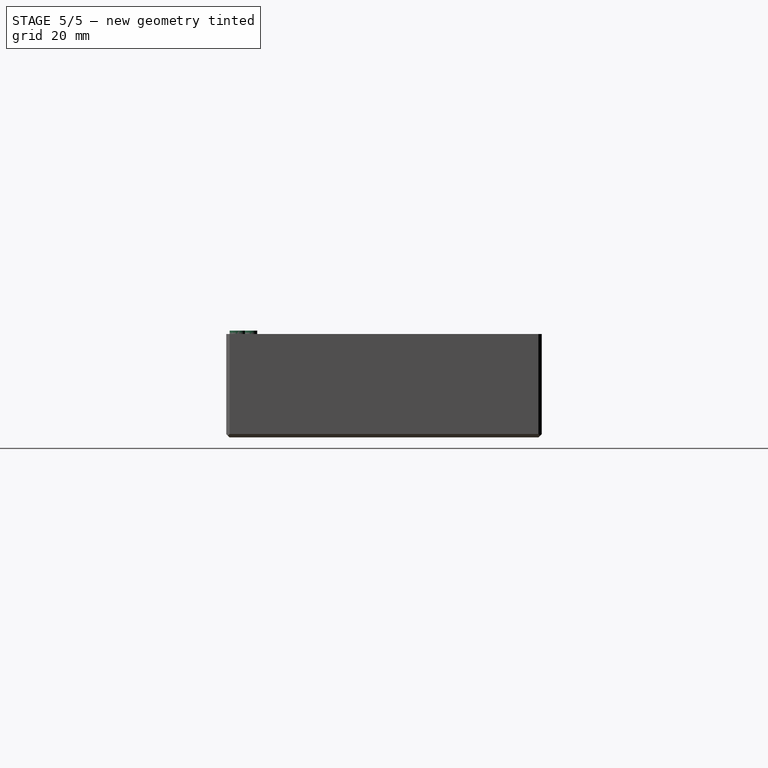
[diagram: stage 5 of 5 — right view after this stage's code; geometry added in this stage tinted green]
FEATURE [Part::Part2DObjectPython] ShapeString006  # Draft 2D object (typed FeaturePython)
  AttachmentOffset = pos=(140.5,1,0) rot=(0,0,1;0rad)
  AttachmentSupport = -> [Pad006]
  FontFile = <path>
  Fuse = false
  Justification = 6
  JustificationReference = 0
  KeepLeftMargin = false
  MakeFace = true
  MapMode = 5
  ObliqueAngle = 0
  Placement = pos=(140.5,1,30) rot=(0,0,1;0rad)
  ScaleToSize = true
  Size = 8
  String = M16
  Tracking = 0
FEATURE [PartDesign::Pad] Pad007
  BaseFeature = -> Pad006
  Direction = (0,0,1)
  Length = 1
  Length2 = 10
  Profile = -> ShapeString006
  ReferenceAxis = -> ShapeString006 [N_Axis]
  Refine = true
  SideType = 0
  Suppressed = false
  Type = 0
  Type2 = 0
FEATURE [Part::Part2DObjectPython] ShapeString007  # Draft 2D object (typed FeaturePython)
  AttachmentOffset = pos=(165.5,1,0) rot=(0,0,1;0rad)
  AttachmentSupport = -> [Pad007]
  FontFile = <path>
  Fuse = false
  Justification = 6
  JustificationReference = 0
  KeepLeftMargin = false
  MakeFace = true
  MapMode = 5
  ObliqueAngle = 0
  Placement = pos=(165.5,1,30) rot=(0,0,1;0rad)
  ScaleToSize = true
  Size = 8
  String = M18
  Tracking = 0
FEATURE [PartDesign::Pad] Pad008
  BaseFeature = -> Pad007
  Direction = (0,0,1)
  Length = 1
  Length2 = 10
  Profile = -> ShapeString007
  ReferenceAxis = -> ShapeString007 [N_Axis]
  Refine = true
  SideType = 0
  Suppressed = false
  Type = 0
  Type2 = 0
FEATURE [PartDesign::Chamfer] Chamfer001
  Angle = 45
  Base = -> Pad008 [Edge5,Edge1,Edge4,Edge414]
  BaseFeature = -> Pad008
  ChamferType = 0
  FlipDirection = false
  Refine = true
  Size = 1
  Size2 = 1
  SupportTransform = false
  Suppressed = false
  UseAllEdges = false
FEATURE [PartDesign::Chamfer] Chamfer002
  Angle = 45
  Base = -> Chamfer001 [Edge362,Edge370,Edge380,Edge382,Edge396,Edge398,Edge412,Edge414]
  BaseFeature = -> Chamfer001
  ChamferType = 0
  FlipDirection = false
  Refine = true
  Size = 2
  Size2 = 1
  SupportTransform = false
  Suppressed = false
  UseAllEdges = false
FEATURE [PartDesign::Body] Body
  AllowCompound = true
  Group = -> [Sketch,Pad,Sketch001,Groove,Sketch002,Groove001,Sketch003,Groove002,Sketch004,Groove003,Sketch005,Groove004,Sketch006,Groove005,Sketch007,Groove006,Sketch008,Groove007,Chamfer,ShapeString,Pad001,ShapeString001,Pad002,ShapeString002,Pad003,ShapeString003,Pad004,ShapeString004,Pad005,ShapeString005,Pad006,ShapeString006,Pad007,ShapeString007,Pad008,Chamfer001,Chamfer002]
  Origin = -> Origin
  Tip = -> Chamfer002
note: 8 file-system paths scrubbed to <path> (originals preserved in the JSON sidecar)
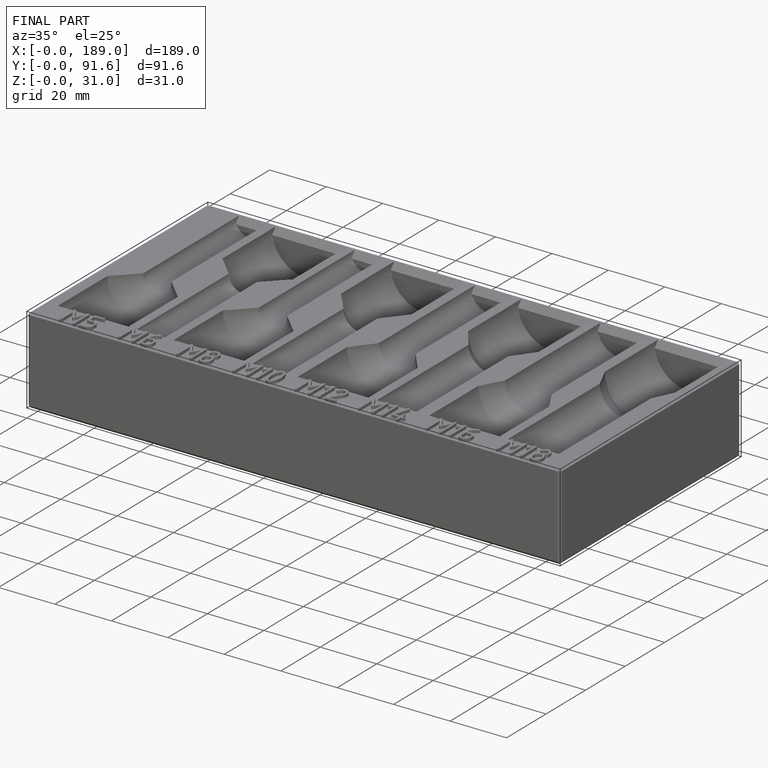
[diagram: finished part — iso view with bounding-box wireframe]
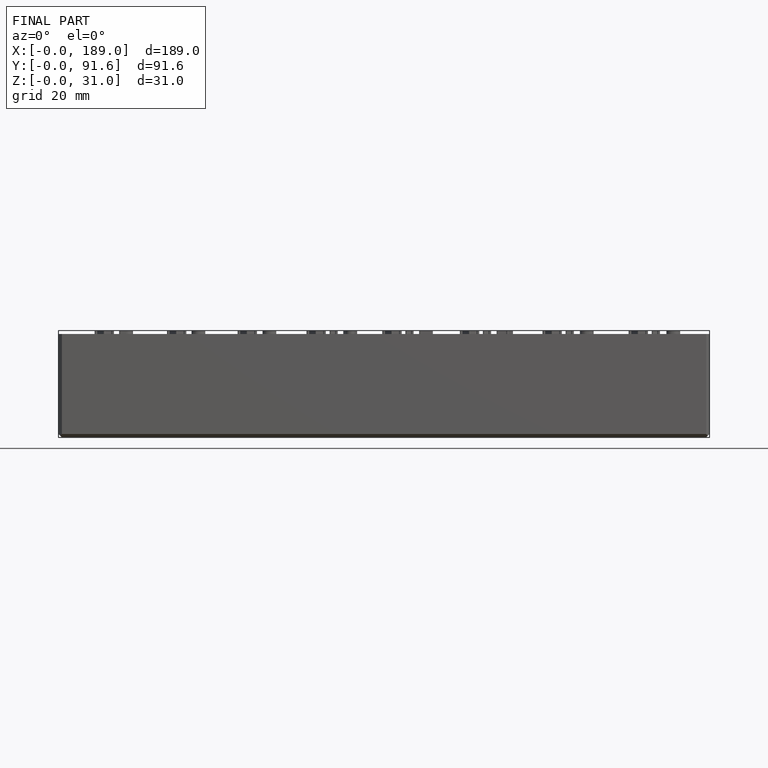
[diagram: finished part — front view with bounding-box wireframe]
